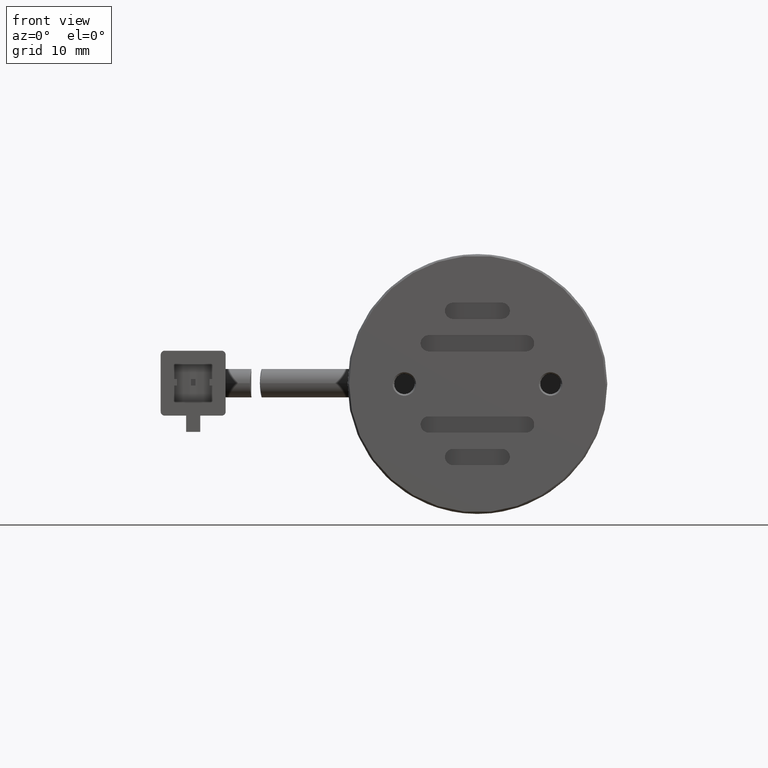
[diagram: clean part render]
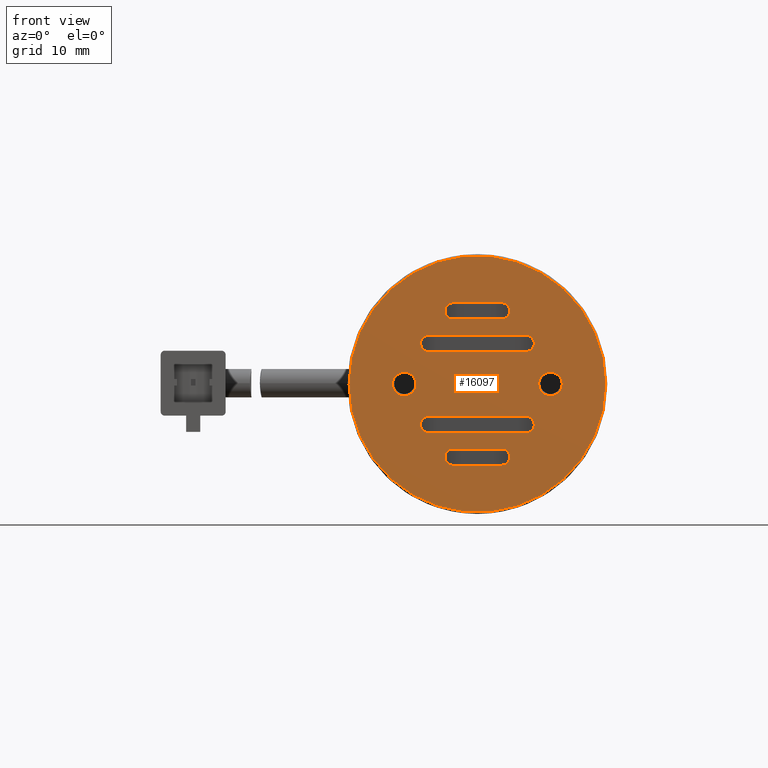
[diagram: same view with one face highlighted and labeled with its STEP entity id]
A machine part, front view. The second image highlights one B-rep face of the part: STEP entity #16097.
In plain terms, the highlighted planar face has unit normal (-0, 1, 0).
Its self-contained STEP definition (entity closure, byte-faithful):
#5 = VERTEX_POINT ( 'NONE', #14219 ) ;
#115 = DIRECTION ( 'NONE',  ( 1.000000000000000000, 0.0000000000000000000, 0.0000000000000000000 ) ) ;
#211 = CARTESIAN_POINT ( 'NONE',  ( 8.574933787635693200, -39.71493551001260200, -13.17403592165941900 ) ) ;
#322 = CIRCLE ( 'NONE', #2226, 0.9999999999999991100 ) ;
#335 = EDGE_CURVE ( 'NONE', #9465, #19923, #1322, .T. ) ;
#354 = CIRCLE ( 'NONE', #7471, 0.9999999999999991100 ) ;
#364 = ORIENTED_EDGE ( 'NONE', *, *, #554, .T. ) ;
#407 = ORIENTED_EDGE ( 'NONE', *, *, #10977, .F. ) ;
#480 = VERTEX_POINT ( 'NONE', #7633 ) ;
#554 = EDGE_CURVE ( 'NONE', #13431, #4161, #12512, .T. ) ;
#610 = LINE ( 'NONE', #10759, #12293 ) ;
#693 = EDGE_CURVE ( 'NONE', #16604, #17430, #3187, .T. ) ;
#870 = DIRECTION ( 'NONE',  ( -0.0000000000000000000, 1.000000000000000000, -0.0000000000000000000 ) ) ;
#959 = CARTESIAN_POINT ( 'NONE',  ( -3.425066212364307600, -39.71493551001260200, -5.174035921659416300 ) ) ;
#1048 = ORIENTED_EDGE ( 'NONE', *, *, #13977, .F. ) ;
#1101 = CARTESIAN_POINT ( 'NONE',  ( 5.574933787635692400, -39.71493551001260200, -18.17403592165942100 ) ) ;
#1114 = DIRECTION ( 'NONE',  ( -0.0000000000000000000, -1.000000000000000000, 0.0000000000000000000 ) ) ;
#1175 = VERTEX_POINT ( 'NONE', #2044 ) ;
#1185 = EDGE_CURVE ( 'NONE', #9498, #4005, #18688, .T. ) ;
#1191 = CARTESIAN_POINT ( 'NONE',  ( -6.425066212364308500, -39.71493551001260200, -9.174035921659418900 ) ) ;
#1274 = AXIS2_PLACEMENT_3D ( 'NONE', #2101, #12760, #3617 ) ;
#1322 = CIRCLE ( 'NONE', #13667, 0.9999999999999991100 ) ;
#1355 = CARTESIAN_POINT ( 'NONE',  ( -4.425066212364306800, -39.71493551001260200, -14.17403592165942200 ) ) ;
#1477 = CARTESIAN_POINT ( 'NONE',  ( -0.4250662123643075300, -39.71493551001260200, -18.17403592165942400 ) ) ;
#1487 = CARTESIAN_POINT ( 'NONE',  ( -3.425066212364307600, -39.71493551001260200, -14.17403592165942200 ) ) ;
#1657 = LINE ( 'NONE', #17380, #5697 ) ;
#1811 = CARTESIAN_POINT ( 'NONE',  ( 13.02493378759822400, -39.71493551001260200, -9.174035921659418900 ) ) ;
#1857 = CARTESIAN_POINT ( 'NONE',  ( -0.4250662123643075300, -39.71493551001260200, -0.1740359216594149200 ) ) ;
#1875 = DIRECTION ( 'NONE',  ( -0.0000000000000000000, -1.000000000000000000, 0.0000000000000000000 ) ) ;
#2005 = CARTESIAN_POINT ( 'NONE',  ( -4.975066212315833300, -39.71493551001260200, -9.174035921659418900 ) ) ;
#2044 = CARTESIAN_POINT ( 'NONE',  ( -0.4250662123643071400, -39.71493551001260200, -19.17403592165942100 ) ) ;
#2101 = CARTESIAN_POINT ( 'NONE',  ( 2.574933787635692400, -39.71493551001260200, -9.174035921659418900 ) ) ;
#2226 = AXIS2_PLACEMENT_3D ( 'NONE', #10251, #1114, #11787 ) ;
#2395 = DIRECTION ( 'NONE',  ( -0.0000000000000000000, -1.000000000000000000, 0.0000000000000000000 ) ) ;
#2471 = VERTEX_POINT ( 'NONE', #2005 ) ;
#2483 = EDGE_CURVE ( 'NONE', #480, #18182, #3016, .T. ) ;
#2508 = ORIENTED_EDGE ( 'NONE', *, *, #14439, .F. ) ;
#2621 = DIRECTION ( 'NONE',  ( -1.000000000000000000, 0.0000000000000000000, 0.0000000000000000000 ) ) ;
#2708 = DIRECTION ( 'NONE',  ( -1.000000000000000000, 0.0000000000000000000, 0.0000000000000000000 ) ) ;
#2746 = ORIENTED_EDGE ( 'NONE', *, *, #5302, .F. ) ;
#2890 = EDGE_CURVE ( 'NONE', #15956, #19893, #4206, .T. ) ;
#2945 = CIRCLE ( 'NONE', #16998, 0.9999999999999991100 ) ;
#2995 = LINE ( 'NONE', #3737, #7012 ) ;
#3015 = DIRECTION ( 'NONE',  ( -1.000000000000000000, 0.0000000000000000000, 0.0000000000000000000 ) ) ;
#3016 = LINE ( 'NONE', #3608, #11124 ) ;
#3024 = DIRECTION ( 'NONE',  ( -1.000000000000000000, 0.0000000000000000000, 0.0000000000000000000 ) ) ;
#3093 = CARTESIAN_POINT ( 'NONE',  ( 11.57493378763569300, -39.71493551001260200, -9.174035921659418900 ) ) ;
#3107 = CARTESIAN_POINT ( 'NONE',  ( -1.425066212364306800, -39.71493551001260200, -18.17403592165942400 ) ) ;
#3119 = CARTESIAN_POINT ( 'NONE',  ( 8.574933787635693200, -39.71493551001260200, -3.174035921659420300 ) ) ;
#3125 = CARTESIAN_POINT ( 'NONE',  ( 2.574933787635692400, -39.71493551001260200, -9.174035921659418900 ) ) ;
#3187 = CIRCLE ( 'NONE', #9458, 15.79999999999996700 ) ;
#3197 = AXIS2_PLACEMENT_3D ( 'NONE', #1191, #11873, #2708 ) ;
#3259 = DIRECTION ( 'NONE',  ( 0.0000000000000000000, 1.000000000000000000, 0.0000000000000000000 ) ) ;
#3379 = DIRECTION ( 'NONE',  ( -1.000000000000000000, 0.0000000000000000000, 0.0000000000000000000 ) ) ;
#3409 = ORIENTED_EDGE ( 'NONE', *, *, #10316, .F. ) ;
#3464 = ORIENTED_EDGE ( 'NONE', *, *, #2483, .F. ) ;
#3465 = DIRECTION ( 'NONE',  ( 1.000000000000000000, 0.0000000000000000000, 0.0000000000000000000 ) ) ;
#3608 = CARTESIAN_POINT ( 'NONE',  ( 2.574933787635692400, -39.71493551001260200, -15.17403592165942100 ) ) ;
#3617 = DIRECTION ( 'NONE',  ( 1.000000000000000000, 0.0000000000000000000, 0.0000000000000000000 ) ) ;
#3654 = CIRCLE ( 'NONE', #9720, 0.9999999999999991100 ) ;
#3707 = DIRECTION ( 'NONE',  ( -0.0000000000000000000, -1.000000000000000000, 0.0000000000000000000 ) ) ;
#3731 = FACE_BOUND ( 'NONE', #14223, .T. ) ;
#3737 = CARTESIAN_POINT ( 'NONE',  ( 2.574933787635692400, -39.71493551001260200, -5.174035921659416300 ) ) ;
#3749 = CIRCLE ( 'NONE', #3936, 0.9999999999999991100 ) ;
#3814 = CARTESIAN_POINT ( 'NONE',  ( 5.574933787635692400, -39.71493551001260200, -0.1740359216594166700 ) ) ;
#3870 = CARTESIAN_POINT ( 'NONE',  ( 2.574933787635692400, -39.71493551001260200, -1.174035921659415800 ) ) ;
#3936 = AXIS2_PLACEMENT_3D ( 'NONE', #1101, #11778, #2621 ) ;
#4005 = VERTEX_POINT ( 'NONE', #14631 ) ;
#4103 = LINE ( 'NONE', #5363, #15814 ) ;
#4161 = VERTEX_POINT ( 'NONE', #4215 ) ;
#4165 = CIRCLE ( 'NONE', #10734, 1.450000000048475000 ) ;
#4206 = LINE ( 'NONE', #14418, #11835 ) ;
#4215 = CARTESIAN_POINT ( 'NONE',  ( 10.12493378767316400, -39.71493551001260200, -9.174035921659418900 ) ) ;
#4241 = FACE_BOUND ( 'NONE', #6553, .T. ) ;
#4262 = ORIENTED_EDGE ( 'NONE', *, *, #17478, .F. ) ;
#4270 = VERTEX_POINT ( 'NONE', #4894 ) ;
#4564 = CARTESIAN_POINT ( 'NONE',  ( 8.574933787635693200, -39.71493551001260200, -14.17403592165942100 ) ) ;
#4633 = EDGE_CURVE ( 'NONE', #19923, #480, #11033, .T. ) ;
#4636 = DIRECTION ( 'NONE',  ( -1.000000000000000000, 0.0000000000000000000, 0.0000000000000000000 ) ) ;
#4650 = VECTOR ( 'NONE', #14575, 1000.000000000000000 ) ;
#4894 = CARTESIAN_POINT ( 'NONE',  ( -1.425066212364306800, -39.71493551001260200, -0.1740359216594149200 ) ) ;
#5095 = AXIS2_PLACEMENT_3D ( 'NONE', #3093, #13781, #4636 ) ;
#5165 = DIRECTION ( 'NONE',  ( -0.0000000000000000000, 1.000000000000000000, 0.0000000000000000000 ) ) ;
#5302 = EDGE_CURVE ( 'NONE', #12817, #9465, #1657, .T. ) ;
#5330 = DIRECTION ( 'NONE',  ( -1.000000000000000000, 0.0000000000000000000, 0.0000000000000000000 ) ) ;
#5363 = CARTESIAN_POINT ( 'NONE',  ( 2.574933787635692400, -39.71493551001260200, 0.8259640783405825000 ) ) ;
#5373 = CARTESIAN_POINT ( 'NONE',  ( -0.4250662123643075300, -39.71493551001260200, -0.1740359216594149200 ) ) ;
#5591 = EDGE_LOOP ( 'NONE', ( #11613, #364 ) ) ;
#5607 = ORIENTED_EDGE ( 'NONE', *, *, #19312, .F. ) ;
#5697 = VECTOR ( 'NONE', #6612, 1000.000000000000000 ) ;
#5934 = CIRCLE ( 'NONE', #1274, 15.79999999999996700 ) ;
#5991 = CARTESIAN_POINT ( 'NONE',  ( -3.425066212364307600, -39.71493551001260200, -14.17403592165942200 ) ) ;
#6032 = CARTESIAN_POINT ( 'NONE',  ( -3.425066212364307600, -39.71493551001260200, -13.17403592165942100 ) ) ;
#6057 = DIRECTION ( 'NONE',  ( -1.000000000000000000, 0.0000000000000000000, 0.0000000000000000000 ) ) ;
#6065 = EDGE_LOOP ( 'NONE', ( #10846, #9372 ) ) ;
#6107 = ORIENTED_EDGE ( 'NONE', *, *, #9140, .F. ) ;
#6130 = DIRECTION ( 'NONE',  ( -0.0000000000000000000, -1.000000000000000000, 0.0000000000000000000 ) ) ;
#6192 = DIRECTION ( 'NONE',  ( -1.000000000000000000, 0.0000000000000000000, 0.0000000000000000000 ) ) ;
#6312 = EDGE_LOOP ( 'NONE', ( #16978, #3409 ) ) ;
#6553 = EDGE_LOOP ( 'NONE', ( #13866, #7453, #17069, #6107, #10963 ) ) ;
#6612 = DIRECTION ( 'NONE',  ( -1.000000000000000000, -0.0000000000000000000, -0.0000000000000000000 ) ) ;
#6725 = AXIS2_PLACEMENT_3D ( 'NONE', #16948, #17010, #17075 ) ;
#6747 = CARTESIAN_POINT ( 'NONE',  ( -13.22506621236427400, -39.71493551001260200, -9.174035921659420700 ) ) ;
#6756 = DIRECTION ( 'NONE',  ( -1.000000000000000000, -0.0000000000000000000, -0.0000000000000000000 ) ) ;
#6853 = CARTESIAN_POINT ( 'NONE',  ( 8.574933787635693200, -39.71493551001260200, -15.17403592165941900 ) ) ;
#6884 = DIRECTION ( 'NONE',  ( -1.000000000000000000, 0.0000000000000000000, 0.0000000000000000000 ) ) ;
#6907 = CARTESIAN_POINT ( 'NONE',  ( 5.574933787635692400, -39.71493551001260200, 0.8259640783405825000 ) ) ;
#7012 = VECTOR ( 'NONE', #12871, 1000.000000000000000 ) ;
#7241 = ORIENTED_EDGE ( 'NONE', *, *, #335, .F. ) ;
#7333 = ORIENTED_EDGE ( 'NONE', *, *, #8149, .F. ) ;
#7424 = EDGE_CURVE ( 'NONE', #4161, #13431, #18163, .T. ) ;
#7453 = ORIENTED_EDGE ( 'NONE', *, *, #7882, .F. ) ;
#7471 = AXIS2_PLACEMENT_3D ( 'NONE', #1477, #12167, #3015 ) ;
#7555 = VERTEX_POINT ( 'NONE', #14050 ) ;
#7616 = EDGE_CURVE ( 'NONE', #5, #12168, #19113, .T. ) ;
#7633 = CARTESIAN_POINT ( 'NONE',  ( -3.425066212364307600, -39.71493551001260200, -15.17403592165942100 ) ) ;
#7651 = CARTESIAN_POINT ( 'NONE',  ( -0.4250662123643075300, -39.71493551001260200, -1.174035921659415800 ) ) ;
#7783 = FACE_OUTER_BOUND ( 'NONE', #6312, .T. ) ;
#7882 = EDGE_CURVE ( 'NONE', #1175, #14280, #610, .T. ) ;
#7981 = AXIS2_PLACEMENT_3D ( 'NONE', #14346, #5165, #15889 ) ;
#8149 = EDGE_CURVE ( 'NONE', #12382, #17440, #12747, .T. ) ;
#8260 = FACE_BOUND ( 'NONE', #10871, .T. ) ;
#8309 = EDGE_CURVE ( 'NONE', #18182, #12817, #2945, .T. ) ;
#8940 = CARTESIAN_POINT ( 'NONE',  ( -3.425066212364307600, -39.71493551001260200, -3.174035921659419400 ) ) ;
#8990 = EDGE_CURVE ( 'NONE', #12848, #1175, #354, .T. ) ;
#9140 = EDGE_CURVE ( 'NONE', #4005, #12848, #10323, .T. ) ;
#9372 = ORIENTED_EDGE ( 'NONE', *, *, #14578, .T. ) ;
#9454 = AXIS2_PLACEMENT_3D ( 'NONE', #3814, #14518, #5330 ) ;
#9458 = AXIS2_PLACEMENT_3D ( 'NONE', #3125, #3259, #3465 ) ;
#9465 = VERTEX_POINT ( 'NONE', #6032 ) ;
#9498 = VERTEX_POINT ( 'NONE', #13938 ) ;
#9649 = PLANE ( 'NONE',  #7981 ) ;
#9720 = AXIS2_PLACEMENT_3D ( 'NONE', #5373, #16098, #6884 ) ;
#9845 = CARTESIAN_POINT ( 'NONE',  ( 5.574933787635692400, -39.71493551001260200, -1.174035921659415800 ) ) ;
#9992 = CARTESIAN_POINT ( 'NONE',  ( -6.425066212364308500, -39.71493551001260200, -9.174035921659418900 ) ) ;
#10147 = AXIS2_PLACEMENT_3D ( 'NONE', #1487, #12173, #3024 ) ;
#10251 = CARTESIAN_POINT ( 'NONE',  ( -3.425066212364307600, -39.71493551001260200, -4.174035921659417200 ) ) ;
#10316 = EDGE_CURVE ( 'NONE', #17430, #16604, #5934, .T. ) ;
#10323 = CIRCLE ( 'NONE', #11210, 0.9999999999999991100 ) ;
#10434 = EDGE_CURVE ( 'NONE', #17440, #12136, #19440, .T. ) ;
#10468 = CARTESIAN_POINT ( 'NONE',  ( 5.574933787635692400, -39.71493551001260200, -19.17403592165942100 ) ) ;
#10734 = AXIS2_PLACEMENT_3D ( 'NONE', #9992, #870, #11531 ) ;
#10759 = CARTESIAN_POINT ( 'NONE',  ( 2.574933787635692400, -39.71493551001260200, -19.17403592165942100 ) ) ;
#10846 = ORIENTED_EDGE ( 'NONE', *, *, #14618, .T. ) ;
#10871 = EDGE_LOOP ( 'NONE', ( #7333, #16897, #2508, #4262, #17367 ) ) ;
#10943 = VERTEX_POINT ( 'NONE', #11407 ) ;
#10963 = ORIENTED_EDGE ( 'NONE', *, *, #1185, .F. ) ;
#10977 = EDGE_CURVE ( 'NONE', #7555, #15956, #19380, .T. ) ;
#11013 = CARTESIAN_POINT ( 'NONE',  ( -0.4250662123643075300, -39.71493551001260200, -18.17403592165942400 ) ) ;
#11033 = CIRCLE ( 'NONE', #10147, 0.9999999999999991100 ) ;
#11124 = VECTOR ( 'NONE', #14316, 1000.000000000000000 ) ;
#11210 = AXIS2_PLACEMENT_3D ( 'NONE', #11013, #1875, #12550 ) ;
#11407 = CARTESIAN_POINT ( 'NONE',  ( -0.4250662123643071400, -39.71493551001260200, 0.8259640783405825000 ) ) ;
#11531 = DIRECTION ( 'NONE',  ( -1.000000000000000000, 0.0000000000000000000, 0.0000000000000000000 ) ) ;
#11545 = CARTESIAN_POINT ( 'NONE',  ( 8.574933787635693200, -39.71493551001260200, -4.174035921659418900 ) ) ;
#11613 = ORIENTED_EDGE ( 'NONE', *, *, #7424, .T. ) ;
#11778 = DIRECTION ( 'NONE',  ( -0.0000000000000000000, -1.000000000000000000, 0.0000000000000000000 ) ) ;
#11787 = DIRECTION ( 'NONE',  ( -1.000000000000000000, 0.0000000000000000000, 0.0000000000000000000 ) ) ;
#11835 = VECTOR ( 'NONE', #6756, 1000.000000000000000 ) ;
#11865 = FACE_BOUND ( 'NONE', #6065, .T. ) ;
#11873 = DIRECTION ( 'NONE',  ( -0.0000000000000000000, 1.000000000000000000, -0.0000000000000000000 ) ) ;
#12136 = VERTEX_POINT ( 'NONE', #6907 ) ;
#12167 = DIRECTION ( 'NONE',  ( -0.0000000000000000000, -1.000000000000000000, 0.0000000000000000000 ) ) ;
#12168 = VERTEX_POINT ( 'NONE', #959 ) ;
#12173 = DIRECTION ( 'NONE',  ( -0.0000000000000000000, -1.000000000000000000, 0.0000000000000000000 ) ) ;
#12293 = VECTOR ( 'NONE', #115, 1000.000000000000000 ) ;
#12382 = VERTEX_POINT ( 'NONE', #7651 ) ;
#12512 = CIRCLE ( 'NONE', #6725, 1.449999999962529900 ) ;
#12533 = DIRECTION ( 'NONE',  ( -0.0000000000000000000, -1.000000000000000000, 0.0000000000000000000 ) ) ;
#12550 = DIRECTION ( 'NONE',  ( -1.000000000000000000, 0.0000000000000000000, 0.0000000000000000000 ) ) ;
#12747 = LINE ( 'NONE', #3870, #4650 ) ;
#12760 = DIRECTION ( 'NONE',  ( 0.0000000000000000000, 1.000000000000000000, 0.0000000000000000000 ) ) ;
#12817 = VERTEX_POINT ( 'NONE', #211 ) ;
#12832 = CARTESIAN_POINT ( 'NONE',  ( -3.425066212364307600, -39.71493551001260200, -4.174035921659417200 ) ) ;
#12848 = VERTEX_POINT ( 'NONE', #3107 ) ;
#12871 = DIRECTION ( 'NONE',  ( 1.000000000000000000, 0.0000000000000000000, 0.0000000000000000000 ) ) ;
#12898 = AXIS2_PLACEMENT_3D ( 'NONE', #12832, #3707, #14397 ) ;
#13058 = DIRECTION ( 'NONE',  ( -1.000000000000000000, 0.0000000000000000000, 0.0000000000000000000 ) ) ;
#13140 = EDGE_CURVE ( 'NONE', #14280, #9498, #3749, .T. ) ;
#13244 = EDGE_LOOP ( 'NONE', ( #1048, #19714, #5607, #18948, #407 ) ) ;
#13431 = VERTEX_POINT ( 'NONE', #1811 ) ;
#13573 = ORIENTED_EDGE ( 'NONE', *, *, #4633, .F. ) ;
#13654 = DIRECTION ( 'NONE',  ( -1.000000000000000000, -0.0000000000000000000, -0.0000000000000000000 ) ) ;
#13667 = AXIS2_PLACEMENT_3D ( 'NONE', #5991, #6130, #6192 ) ;
#13697 = CARTESIAN_POINT ( 'NONE',  ( 2.574933787635692400, -39.71493551001260200, -17.17403592165942400 ) ) ;
#13702 = CIRCLE ( 'NONE', #19433, 0.9999999999999991100 ) ;
#13781 = DIRECTION ( 'NONE',  ( -0.0000000000000000000, 1.000000000000000000, -0.0000000000000000000 ) ) ;
#13866 = ORIENTED_EDGE ( 'NONE', *, *, #13140, .F. ) ;
#13938 = CARTESIAN_POINT ( 'NONE',  ( 5.574933787635692400, -39.71493551001260200, -17.17403592165942400 ) ) ;
#13977 = EDGE_CURVE ( 'NONE', #12168, #7555, #2995, .T. ) ;
#14050 = CARTESIAN_POINT ( 'NONE',  ( 8.574933787635693200, -39.71493551001260200, -5.174035921659418100 ) ) ;
#14219 = CARTESIAN_POINT ( 'NONE',  ( -4.425066212364306800, -39.71493551001260200, -4.174035921659417200 ) ) ;
#14223 = EDGE_LOOP ( 'NONE', ( #18489, #3464, #13573, #7241, #2746 ) ) ;
#14280 = VERTEX_POINT ( 'NONE', #10468 ) ;
#14316 = DIRECTION ( 'NONE',  ( 1.000000000000000000, 0.0000000000000000000, 0.0000000000000000000 ) ) ;
#14346 = CARTESIAN_POINT ( 'NONE',  ( 2.574933787635692400, -39.71493551001260200, -9.174035921659418900 ) ) ;
#14397 = DIRECTION ( 'NONE',  ( -1.000000000000000000, 0.0000000000000000000, 0.0000000000000000000 ) ) ;
#14418 = CARTESIAN_POINT ( 'NONE',  ( 2.574933787635692400, -39.71493551001260200, -3.174035921659420300 ) ) ;
#14439 = EDGE_CURVE ( 'NONE', #10943, #4270, #13702, .T. ) ;
#14518 = DIRECTION ( 'NONE',  ( -0.0000000000000000000, -1.000000000000000000, 0.0000000000000000000 ) ) ;
#14546 = VECTOR ( 'NONE', #13654, 1000.000000000000000 ) ;
#14554 = EDGE_CURVE ( 'NONE', #4270, #12382, #3654, .T. ) ;
#14575 = DIRECTION ( 'NONE',  ( 1.000000000000000000, 0.0000000000000000000, 0.0000000000000000000 ) ) ;
#14578 = EDGE_CURVE ( 'NONE', #2471, #14675, #4165, .T. ) ;
#14618 = EDGE_CURVE ( 'NONE', #14675, #2471, #16104, .T. ) ;
#14631 = CARTESIAN_POINT ( 'NONE',  ( -0.4250662123643075300, -39.71493551001260200, -17.17403592165942400 ) ) ;
#14675 = VERTEX_POINT ( 'NONE', #16526 ) ;
#15249 = DIRECTION ( 'NONE',  ( -0.0000000000000000000, -1.000000000000000000, 0.0000000000000000000 ) ) ;
#15814 = VECTOR ( 'NONE', #16090, 1000.000000000000000 ) ;
#15889 = DIRECTION ( 'NONE',  ( 1.000000000000000000, 0.0000000000000000000, 0.0000000000000000000 ) ) ;
#15956 = VERTEX_POINT ( 'NONE', #3119 ) ;
#16090 = DIRECTION ( 'NONE',  ( -1.000000000000000000, -0.0000000000000000000, -0.0000000000000000000 ) ) ;
#16097 = ADVANCED_FACE ( 'NONE', ( #8260, #11865, #16462, #7783, #3731, #4241, #19628 ), #9649, .F. ) ;
#16098 = DIRECTION ( 'NONE',  ( -0.0000000000000000000, -1.000000000000000000, 0.0000000000000000000 ) ) ;
#16104 = CIRCLE ( 'NONE', #3197, 1.450000000048475000 ) ;
#16462 = FACE_BOUND ( 'NONE', #5591, .T. ) ;
#16526 = CARTESIAN_POINT ( 'NONE',  ( -7.875066212412783700, -39.71493551001260200, -9.174035921659418900 ) ) ;
#16604 = VERTEX_POINT ( 'NONE', #16782 ) ;
#16782 = CARTESIAN_POINT ( 'NONE',  ( 18.37493378763566200, -39.71493551001260200, -9.174035921659418900 ) ) ;
#16897 = ORIENTED_EDGE ( 'NONE', *, *, #14554, .F. ) ;
#16948 = CARTESIAN_POINT ( 'NONE',  ( 11.57493378763569300, -39.71493551001260200, -9.174035921659418900 ) ) ;
#16978 = ORIENTED_EDGE ( 'NONE', *, *, #693, .F. ) ;
#16998 = AXIS2_PLACEMENT_3D ( 'NONE', #4564, #15249, #6057 ) ;
#17010 = DIRECTION ( 'NONE',  ( -0.0000000000000000000, 1.000000000000000000, -0.0000000000000000000 ) ) ;
#17069 = ORIENTED_EDGE ( 'NONE', *, *, #8990, .F. ) ;
#17075 = DIRECTION ( 'NONE',  ( -1.000000000000000000, 0.0000000000000000000, 0.0000000000000000000 ) ) ;
#17367 = ORIENTED_EDGE ( 'NONE', *, *, #10434, .F. ) ;
#17380 = CARTESIAN_POINT ( 'NONE',  ( 2.574933787635692400, -39.71493551001260200, -13.17403592165941900 ) ) ;
#17430 = VERTEX_POINT ( 'NONE', #6747 ) ;
#17440 = VERTEX_POINT ( 'NONE', #9845 ) ;
#17478 = EDGE_CURVE ( 'NONE', #12136, #10943, #4103, .T. ) ;
#18163 = CIRCLE ( 'NONE', #5095, 1.449999999962529900 ) ;
#18182 = VERTEX_POINT ( 'NONE', #6853 ) ;
#18258 = AXIS2_PLACEMENT_3D ( 'NONE', #11545, #2395, #13058 ) ;
#18489 = ORIENTED_EDGE ( 'NONE', *, *, #8309, .F. ) ;
#18688 = LINE ( 'NONE', #13697, #14546 ) ;
#18948 = ORIENTED_EDGE ( 'NONE', *, *, #2890, .F. ) ;
#19113 = CIRCLE ( 'NONE', #12898, 0.9999999999999991100 ) ;
#19312 = EDGE_CURVE ( 'NONE', #19893, #5, #322, .T. ) ;
#19380 = CIRCLE ( 'NONE', #18258, 0.9999999999999991100 ) ;
#19433 = AXIS2_PLACEMENT_3D ( 'NONE', #1857, #12533, #3379 ) ;
#19440 = CIRCLE ( 'NONE', #9454, 0.9999999999999991100 ) ;
#19628 = FACE_BOUND ( 'NONE', #13244, .T. ) ;
#19714 = ORIENTED_EDGE ( 'NONE', *, *, #7616, .F. ) ;
#19893 = VERTEX_POINT ( 'NONE', #8940 ) ;
#19923 = VERTEX_POINT ( 'NONE', #1355 ) ;